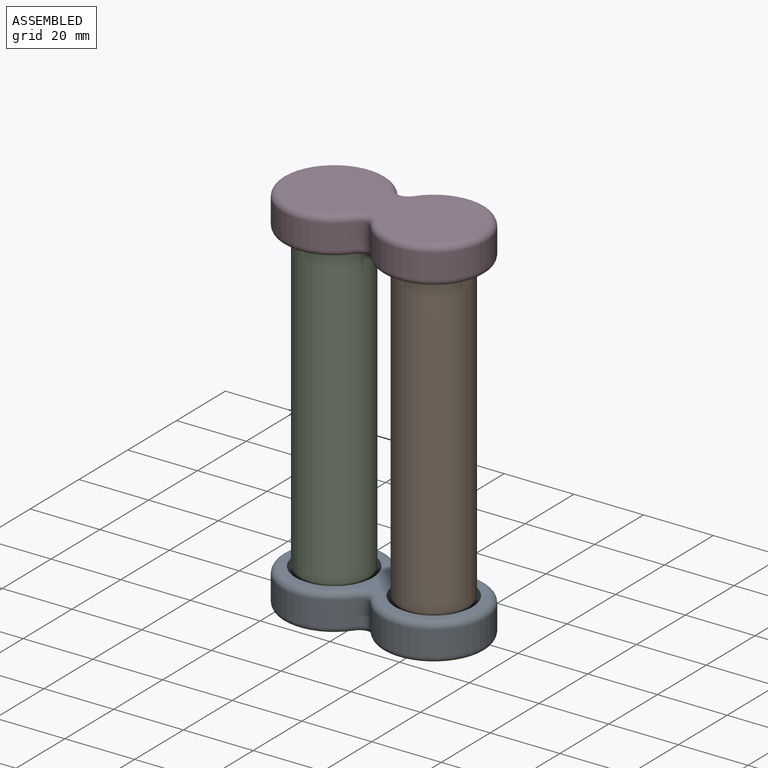
[diagram: assembled view]
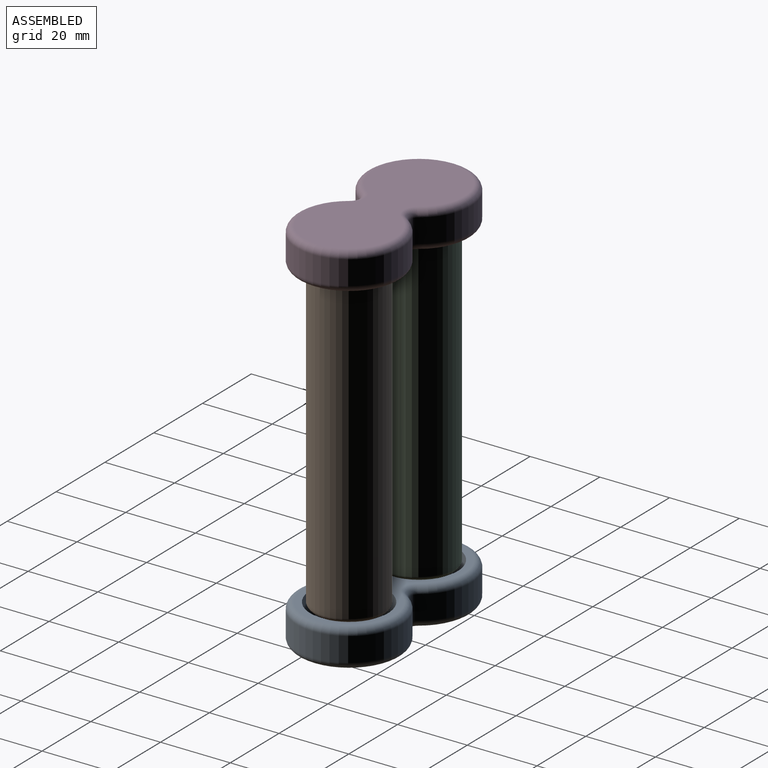
[diagram: assembled view, second angle]
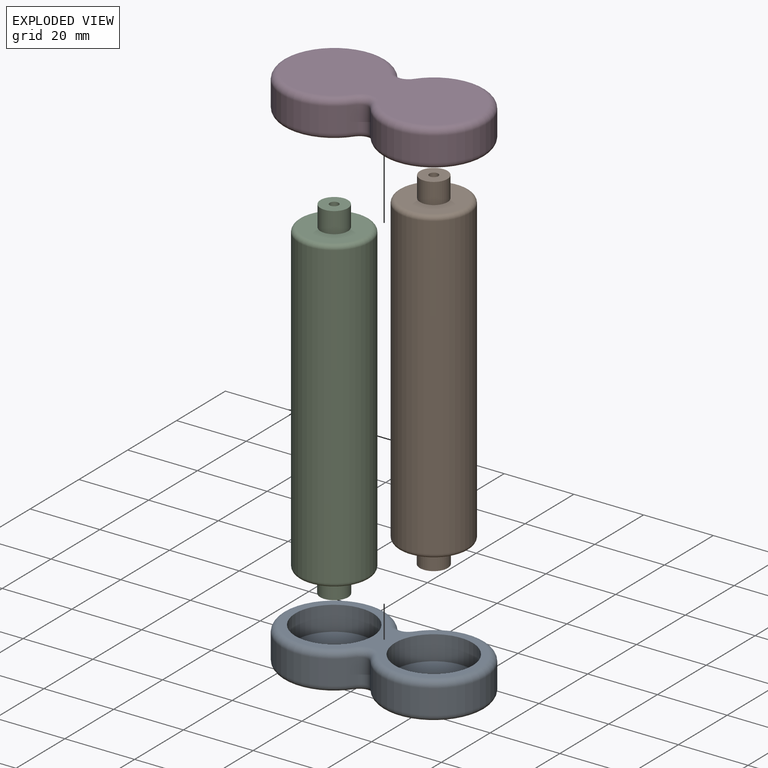
[diagram: exploded view]
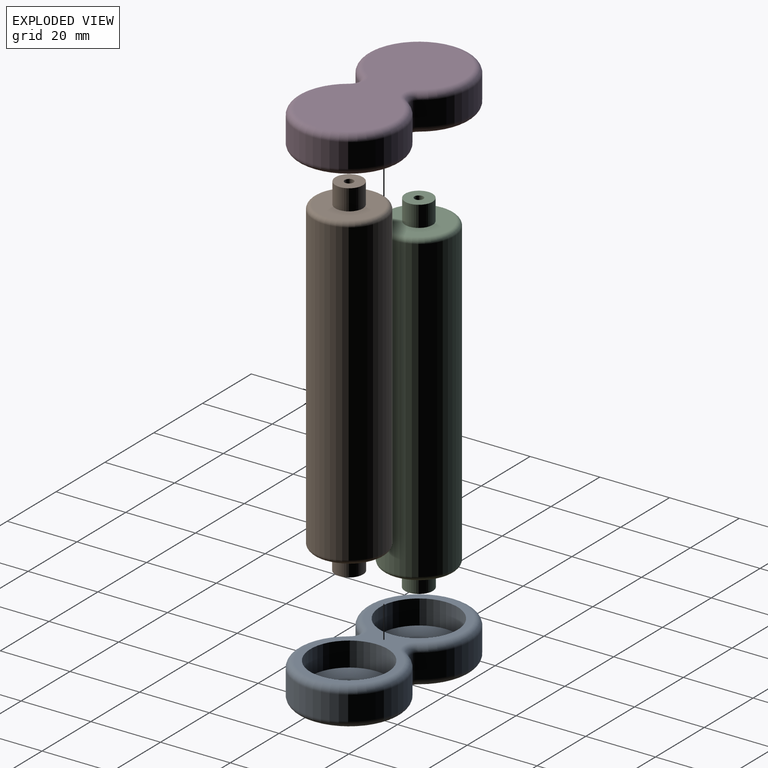
[diagram: exploded view, second angle]
ASSEMBLY  parts=4 mates=4
PART A: 24 faces, bbox 60.9x32.3x10.8 mm
  f0: cylinder r=14.92mm len=29.85mm, axis (0,0,-1), area 528.4mm2, adj f8,f9,f10,f15
  f1: cylinder r=14.92mm len=29.85mm, axis (0,0,-1), area 528.4mm2, adj f8,f9,f13,f16
  f2: cylinder r=11.11mm len=22.23mm, axis (0,0,-1), area 488.8mm2, adj f4,f6
  f3: cylinder r=11.11mm len=22.23mm, axis (0,0,-1), area 488.8mm2, adj f4,f5
  f4: plane 54.61x26.04mm, normal (0,0,1), area 330.3mm2, adj f2,f3,f10,f11,f12,f13
  f5: plane 22.23x22.23mm, normal (0,0,1), area 285.3mm2, adj f3,f22
  f6: plane 22.23x22.23mm, normal (0,0,1), area 285.3mm2, adj f2,f23
  f7: plane 54.61x26.04mm, normal (0,0,-1), area 1106.2mm2, adj f14,f15,f16,f17
  f8: cylinder r=2.54mm len=7mm, axis (0,0,1), area 34.1mm2, adj f0,f1,f12,f17
  f9: cylinder r=2.54mm len=7mm, axis (0,0,1), area 34.1mm2, adj f0,f1,f11,f14
  f10: torus R=13.02mm, axis (0,0,1), area 215.4mm2, adj f0,f4,f11,f12
  f11: torus R=4.45mm, axis (0,0,1), area 18.5mm2, adj f4,f9,f10,f13
  f12: torus R=4.45mm, axis (0,0,1), area 18.5mm2, adj f4,f8,f10,f13
  f13: torus R=13.02mm, axis (0,0,1), area 215.4mm2, adj f1,f4,f11,f12
  f14: torus R=4.45mm, axis (0,0,1), area 18.5mm2, adj f7,f9,f15,f16
  f15: torus R=13.02mm, axis (0,0,1), area 215.4mm2, adj f0,f7,f14,f17
  f16: torus R=13.02mm, axis (0,0,1), area 215.4mm2, adj f1,f7,f14,f17
  f17: torus R=4.45mm, axis (0,0,1), area 18.5mm2, adj f7,f8,f15,f16
  f18: cylinder r=4.45mm len=8.89mm, axis (0,0,1), area 17.7mm2, adj f19,f23
  f19: plane 8.89x8.89mm, normal (0,0,1), area 62.1mm2, adj f18
  f20: cylinder r=4.45mm len=8.89mm, axis (0,0,1), area 17.7mm2, adj f21,f22
  f21: plane 8.89x8.89mm, normal (0,0,1), area 62.1mm2, adj f20
  f22: torus R=5.71mm, axis (0,0,1), area 61.5mm2, adj f5,f20
  f23: torus R=5.71mm, axis (0,0,1), area 61.5mm2, adj f6,f18
PART B: 13 faces, bbox 22x22x100.9 mm
  f0: cylinder r=10.16mm len=86.36mm, axis (0,0,-1), area 5513mm2, adj f7,f8
  f1: plane 17.78x17.78mm, normal (0,0,1), area 199.6mm2, adj f3,f8
  f2: plane 17.78x17.78mm, normal (0,0,-1), area 198mm2, adj f5,f7
  f3: cylinder r=3.94mm len=7.87mm, axis (0,0,-1), area 148.4mm2, adj f1,f4
  f4: plane 7.87x7.87mm, normal (0,0,1), area 43.6mm2, adj f3,f9
  f5: cylinder r=4mm len=8mm, axis (0,0,1), area 150.8mm2, adj f2,f6
  f6: plane 8x8mm, normal (0,0,-1), area 45.2mm2, adj f5,f11
  f7: torus R=8.89mm, axis (0,0,1), area 121.6mm2, adj f0,f2
  f8: torus R=8.89mm, axis (0,0,1), area 121.6mm2, adj f0,f1
  f9: cylinder r=1.27mm len=3.81mm, axis (0,0,1), area 30.4mm2, adj f4,f10
  f10: plane 2.54x2.54mm, normal (0,0,1), area 5.1mm2, adj f9
  f11: cylinder r=1.27mm len=3.81mm, axis (0,0,-1), area 30.4mm2, adj f6,f12
  f12: plane 2.54x2.54mm, normal (0,0,-1), area 5.1mm2, adj f11
PART C: same geometry as B
PART D: same geometry as A
PLACE A t=(3.04,-34.09,-28.73)mm
PLACE B t=(-0.3,-34.09,-22.73)mm
PLACE C t=(-28.87,-34.09,-22.73)mm
PLACE D rot(axis=(1,0,0),180deg) t=(3.04,-34.09,72.17)mm
MATE revolute A.f0 <-> C.f5  axis (0,0,1) through (-28.87,-34.09,-28.73)mm
MATE revolute D.f1 <-> B.f3  axis (0,0,-1) through (-0.3,-34.09,72.17)mm
MATE revolute A.f1 <-> B.f5  axis (0,0,1) through (-0.3,-34.09,-28.73)mm
MATE revolute D.f0 <-> C.f3  axis (0,0,-1) through (-28.87,-34.09,72.17)mm
